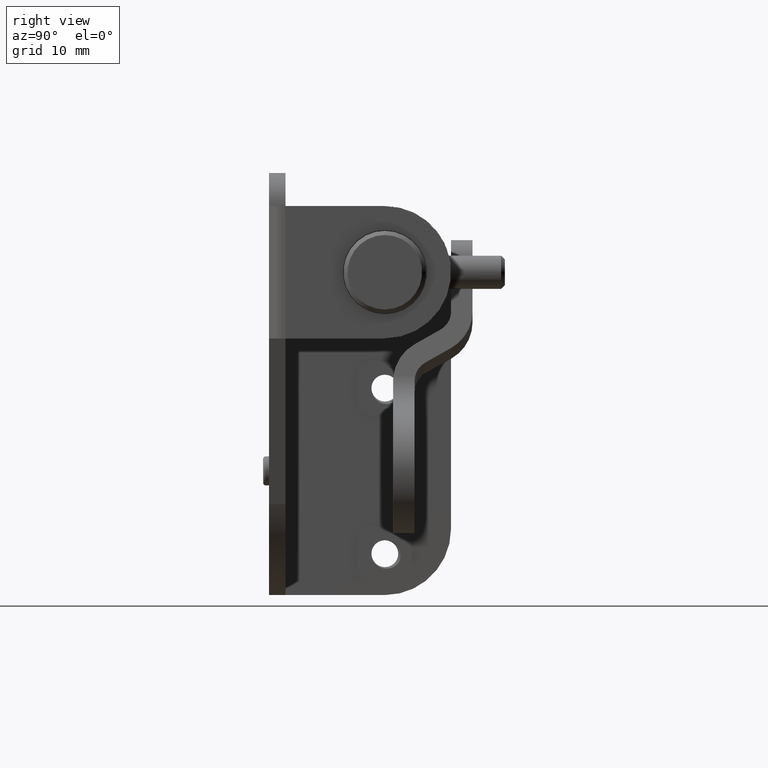
[diagram: clean part render]
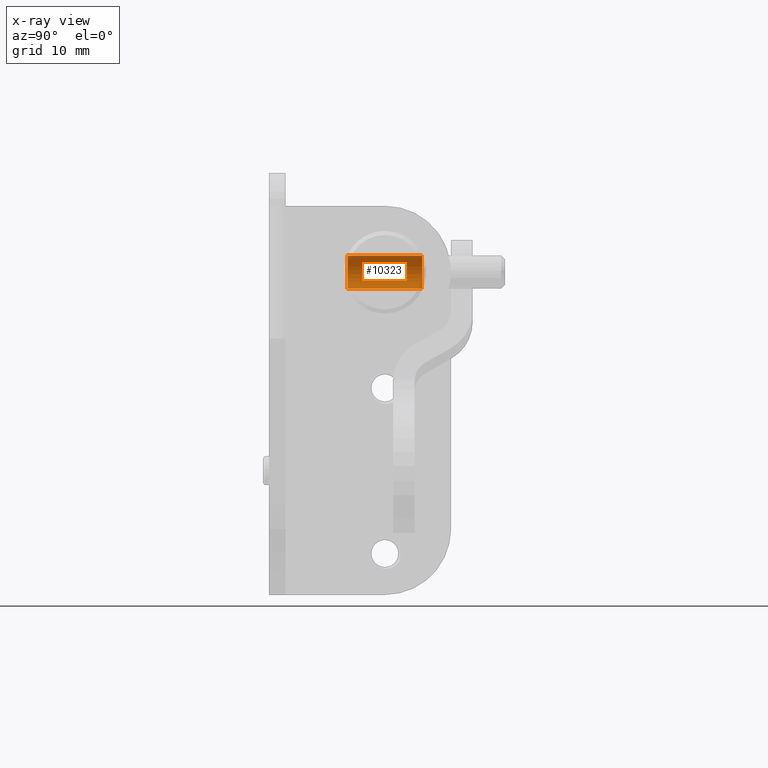
[diagram: x-ray — body ghosted, one internal face saturated and labeled with its STEP entity id]
A machine part, right view, then the same camera in x-ray: the body is ghosted and one INTERNAL B-rep face — a face not visible from any outside direction — is saturated and labeled: STEP entity #10323.
In plain terms, the highlighted cylindrical surface (edge-blend (fillet) strip) has radius 2 mm, axis along (0, -1, 0).
Its self-contained STEP definition (entity closure, byte-faithful):
#300 = FACE_OUTER_BOUND ( 'NONE', #4489, .T. ) ;
#591 = EDGE_CURVE ( 'NONE', #8185, #4122, #8241, .T. ) ;
#1216 = CARTESIAN_POINT ( 'NONE',  ( -19.64999999989024800, 4.499999999794719800, -8.749999999789041600 ) ) ;
#2780 = ORIENTED_EDGE ( 'NONE', *, *, #14046, .F. ) ;
#2930 = VERTEX_POINT ( 'NONE', #12533 ) ;
#3075 = DIRECTION ( 'NONE',  ( 0.0000000000000000000, 1.000000000000000000, 0.0000000000000000000 ) ) ;
#3086 = CARTESIAN_POINT ( 'NONE',  ( -19.64999999990320100, 4.499999999794719800, -6.749999999980020400 ) ) ;
#3151 = CYLINDRICAL_SURFACE ( 'NONE', #15125, 2.000000000000000000 ) ;
#3245 = CARTESIAN_POINT ( 'NONE',  ( -19.64999999989024800, 200986.0000000000000, -6.750000000438349800 ) ) ;
#3933 = LINE ( 'NONE', #4840, #13659 ) ;
#4122 = VERTEX_POINT ( 'NONE', #9962 ) ;
#4170 = AXIS2_PLACEMENT_3D ( 'NONE', #10383, #3075, #11611 ) ;
#4320 = DIRECTION ( 'NONE',  ( 0.0000000000000000000, 0.0000000000000000000, 1.000000000000000000 ) ) ;
#4489 = EDGE_LOOP ( 'NONE', ( #5618, #11001, #2780, #10144 ) ) ;
#4840 = CARTESIAN_POINT ( 'NONE',  ( -19.64999999989024800, 200986.0000000000000, -8.750000000438349800 ) ) ;
#5586 = DIRECTION ( 'NONE',  ( 0.0000000000000000000, 0.0000000000000000000, -1.000000000000000000 ) ) ;
#5618 = ORIENTED_EDGE ( 'NONE', *, *, #10153, .T. ) ;
#7155 = CIRCLE ( 'NONE', #8597, 1.999999999809020100 ) ;
#7863 = VERTEX_POINT ( 'NONE', #1216 ) ;
#8185 = VERTEX_POINT ( 'NONE', #12430 ) ;
#8241 = LINE ( 'NONE', #10942, #11482 ) ;
#8303 = CIRCLE ( 'NONE', #4170, 1.999999999809020100 ) ;
#8597 = AXIS2_PLACEMENT_3D ( 'NONE', #3086, #11622, #4320 ) ;
#9962 = CARTESIAN_POINT ( 'NONE',  ( -19.64999999989024800, -4.499999999807914500, -4.750000000171000100 ) ) ;
#10144 = ORIENTED_EDGE ( 'NONE', *, *, #10792, .F. ) ;
#10153 = EDGE_CURVE ( 'NONE', #7863, #8185, #7155, .T. ) ;
#10323 = ADVANCED_FACE ( 'NONE', ( #300 ), #3151, .F. ) ;
#10383 = CARTESIAN_POINT ( 'NONE',  ( -19.64999999990320100, -4.499999999807914500, -6.749999999980020400 ) ) ;
#10504 = DIRECTION ( 'NONE',  ( 0.0000000000000000000, -1.000000000000000000, 0.0000000000000000000 ) ) ;
#10792 = EDGE_CURVE ( 'NONE', #7863, #2930, #3933, .T. ) ;
#10847 = DIRECTION ( 'NONE',  ( 0.0000000000000000000, -1.000000000000000000, 0.0000000000000000000 ) ) ;
#10942 = CARTESIAN_POINT ( 'NONE',  ( -19.64999999989024800, 200986.0000000000000, -4.750000000438349800 ) ) ;
#11001 = ORIENTED_EDGE ( 'NONE', *, *, #591, .T. ) ;
#11482 = VECTOR ( 'NONE', #10847, 1000.000000000000000 ) ;
#11611 = DIRECTION ( 'NONE',  ( 0.0000000000000000000, 0.0000000000000000000, 1.000000000000000000 ) ) ;
#11622 = DIRECTION ( 'NONE',  ( 0.0000000000000000000, 1.000000000000000000, 0.0000000000000000000 ) ) ;
#12430 = CARTESIAN_POINT ( 'NONE',  ( -19.64999999989024800, 4.499999999794719800, -4.750000000171000100 ) ) ;
#12533 = CARTESIAN_POINT ( 'NONE',  ( -19.64999999989024800, -4.499999999807914500, -8.749999999789041600 ) ) ;
#13659 = VECTOR ( 'NONE', #14587, 1000.000000000000000 ) ;
#14046 = EDGE_CURVE ( 'NONE', #2930, #4122, #8303, .T. ) ;
#14587 = DIRECTION ( 'NONE',  ( 0.0000000000000000000, -1.000000000000000000, 0.0000000000000000000 ) ) ;
#15125 = AXIS2_PLACEMENT_3D ( 'NONE', #3245, #10504, #5586 ) ;